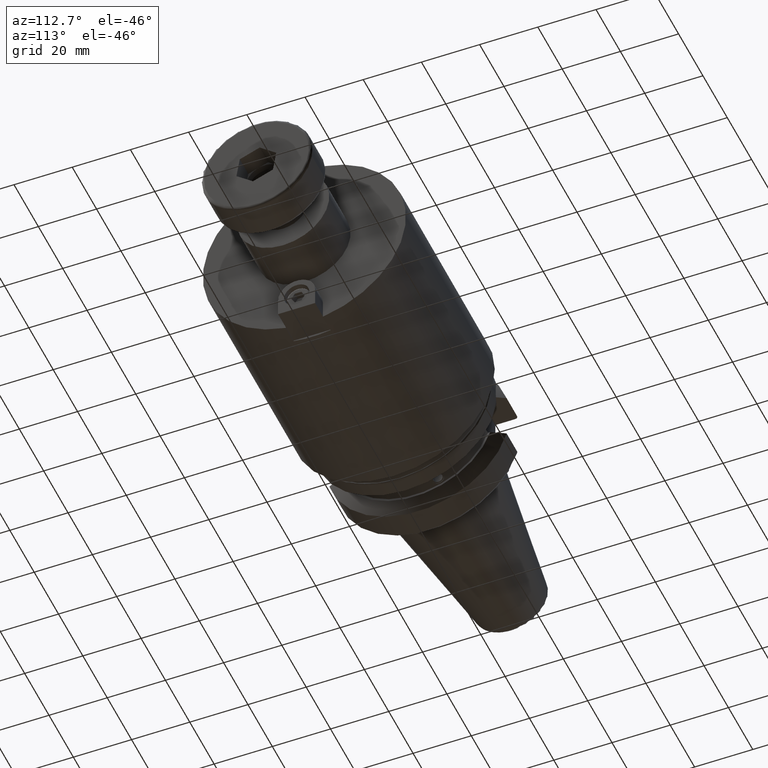
[diagram: clean part render]
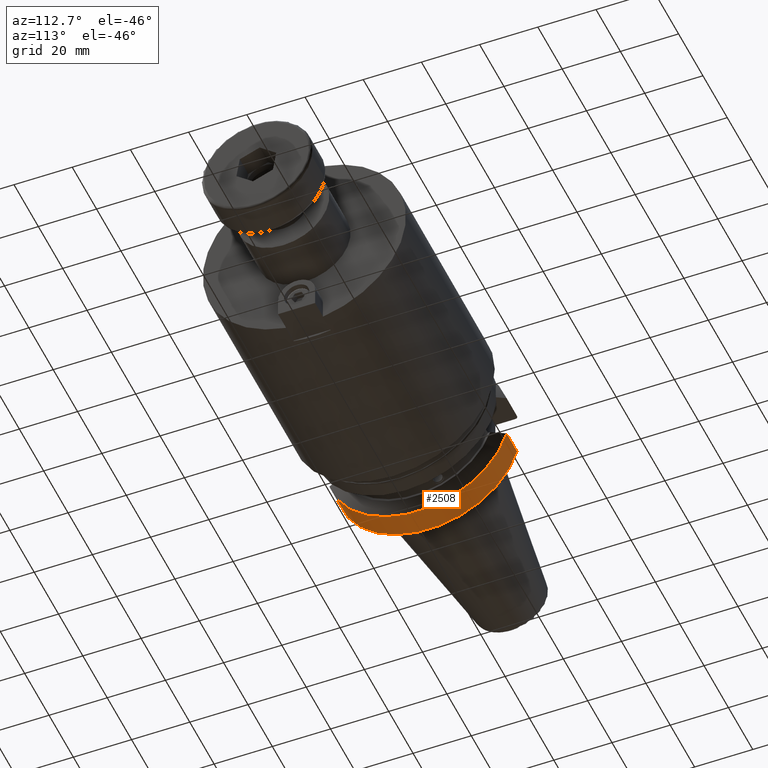
[diagram: same view with one face highlighted and labeled with its STEP entity id]
A machine part, auxiliary view. The second image highlights one B-rep face of the part: STEP entity #2508.
In plain terms, the highlighted cylindrical surface (partial cylindrical patch) has radius 31.5 mm, axis along (1, 0, 0).
Its self-contained STEP definition (entity closure, byte-faithful):
#592=CYLINDRICAL_SURFACE('',#2849,31.5);
#651=CIRCLE('',#2848,31.5000000000001);
#652=CIRCLE('',#2850,31.5);
#805=FACE_OUTER_BOUND('',#942,.T.);
#942=EDGE_LOOP('',(#2058,#2059,#2060,#2061));
#1081=LINE('',#4296,#1216);
#1088=LINE('',#4361,#1223);
#1216=VECTOR('',#3313,10.);
#1223=VECTOR('',#3356,10.);
#1387=VERTEX_POINT('',#4284);
#1388=VERTEX_POINT('',#4295);
#1399=VERTEX_POINT('',#4353);
#1400=VERTEX_POINT('',#4359);
#1621=EDGE_CURVE('',#1388,#1387,#1081,.T.);
#1640=EDGE_CURVE('',#1388,#1399,#651,.T.);
#1642=EDGE_CURVE('',#1387,#1400,#652,.T.);
#1643=EDGE_CURVE('',#1400,#1399,#1088,.T.);
#2058=ORIENTED_EDGE('',*,*,#1621,.T.);
#2059=ORIENTED_EDGE('',*,*,#1642,.T.);
#2060=ORIENTED_EDGE('',*,*,#1643,.T.);
#2061=ORIENTED_EDGE('',*,*,#1640,.F.);
#2508=ADVANCED_FACE('',(#805),#592,.T.);
#2848=AXIS2_PLACEMENT_3D('',#4354,#3350,#3351);
#2849=AXIS2_PLACEMENT_3D('',#4358,#3352,#3353);
#2850=AXIS2_PLACEMENT_3D('',#4360,#3354,#3355);
#3313=DIRECTION('',(-1.,0.,0.));
#3350=DIRECTION('center_axis',(1.,0.,0.));
#3351=DIRECTION('ref_axis',(0.,0.,-1.));
#3352=DIRECTION('center_axis',(1.,0.,0.));
#3353=DIRECTION('ref_axis',(0.,1.,0.));
#3354=DIRECTION('center_axis',(1.,0.,0.));
#3355=DIRECTION('ref_axis',(0.,0.,-1.));
#3356=DIRECTION('',(1.,0.,0.));
#4284=CARTESIAN_POINT('',(3.,-30.4540227227866,-8.05));
#4295=CARTESIAN_POINT('',(11.5690363073382,-30.4540227227866,-8.05));
#4296=CARTESIAN_POINT('',(7.28451815366907,-30.4540227227866,-8.05));
#4353=CARTESIAN_POINT('',(11.5690363073382,30.4540227227866,-8.05));
#4354=CARTESIAN_POINT('Origin',(11.5690363073382,0.,0.));
#4358=CARTESIAN_POINT('Origin',(7.28451815366907,0.,0.));
#4359=CARTESIAN_POINT('',(3.,30.4540227227866,-8.05));
#4360=CARTESIAN_POINT('Origin',(3.,0.,0.));
#4361=CARTESIAN_POINT('',(7.28451815366907,30.4540227227866,-8.05));